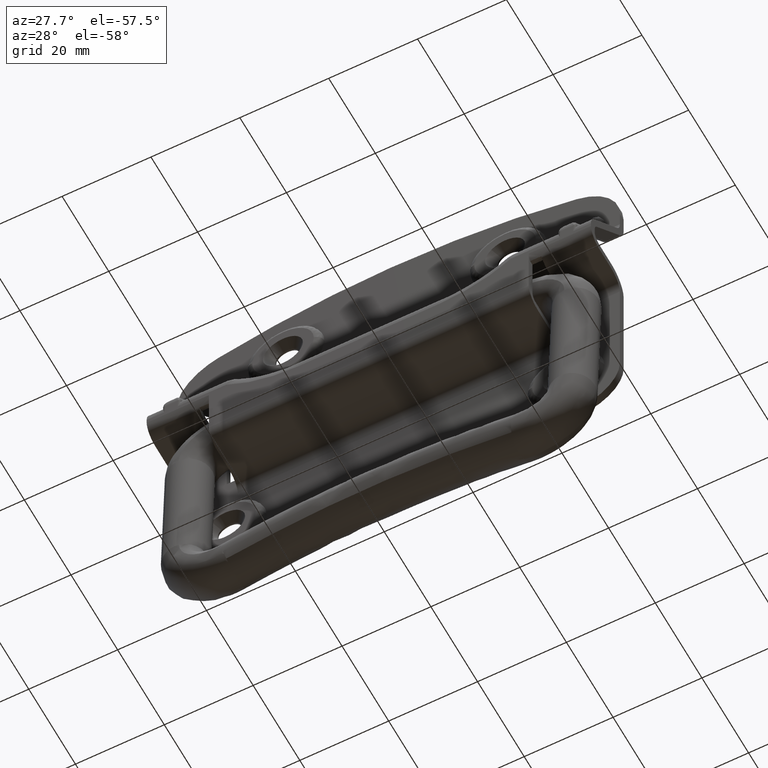
[diagram: clean part render]
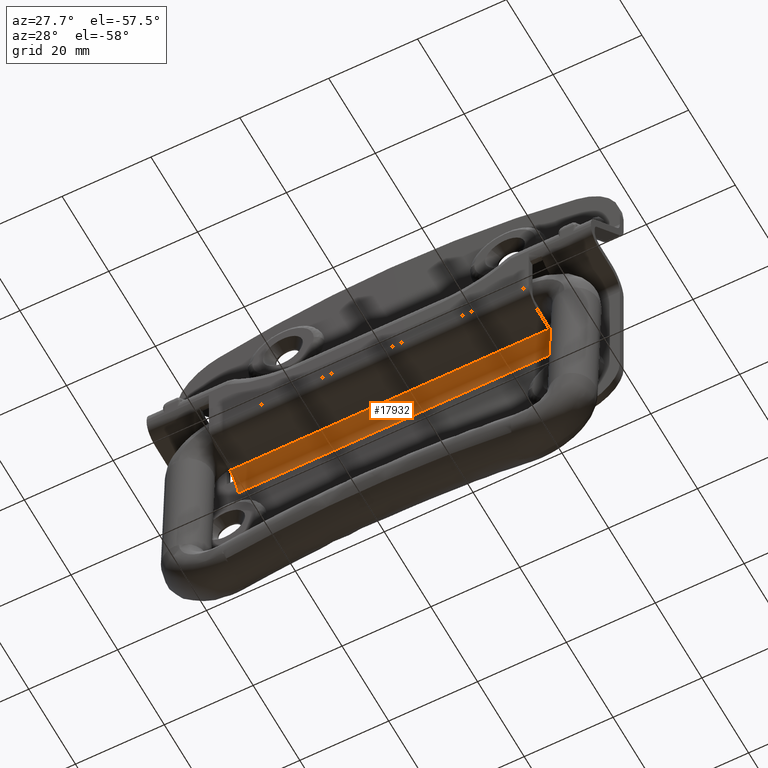
[diagram: same view with one face highlighted and labeled with its STEP entity id]
A machine part, auxiliary view. The second image highlights one B-rep face of the part: STEP entity #17932.
In plain terms, the highlighted face is a freeform B-spline surface patch.
Its self-contained STEP definition (entity closure, byte-faithful):
#17857=CARTESIAN_POINT('',(35.999899999999997,2.300000000000000,-7.0));
#17858=VERTEX_POINT('',#17857);
#17865=CARTESIAN_POINT('',(-35.999899999999997,2.300000000000000,-7.0));
#17866=VERTEX_POINT('',#17865);
#17872=CARTESIAN_POINT('',(35.999899999999997,2.300000000000000,-7.0));
#17873=CARTESIAN_POINT('',(-35.999899999999997,2.300000000000000,-7.0));
#17874=QUASI_UNIFORM_CURVE('',1,(#17872,#17873),.UNSPECIFIED.,.F.,.U.);
#17875=EDGE_CURVE('',#17858,#17866,#17874,.T.);
#17880=CARTESIAN_POINT('',(37.799895000000006,5.798800637414448,-10.591619319077560));
#17881=CARTESIAN_POINT('',(-37.844894875000023,5.798800637414448,-10.591619319077560));
#17882=CARTESIAN_POINT('',(37.799895000000014,5.898785579185964,-6.773348439920588));
#17883=CARTESIAN_POINT('',(-37.844894875000016,5.898785579185964,-6.773348439920588));
#17884=CARTESIAN_POINT('',(37.799895000000006,2.086330111628002,-7.006528205523468));
#17885=CARTESIAN_POINT('',(-37.844894875000023,2.086330111628002,-7.006528205523468));
#17893=(BOUNDED_SURFACE()B_SPLINE_SURFACE(1,2,((#17880,#17882,#17884),(#17881,#17883,#17885)),.UNSPECIFIED.,.F.,.F.,.U.)B_SPLINE_SURFACE_WITH_KNOTS((2,2),(3,3),(0.0,75.644789875000015),(0.0,6.160147432485667),.UNSPECIFIED.)GEOMETRIC_REPRESENTATION_ITEM()RATIONAL_B_SPLINE_SURFACE(((1.0,0.675590207615660,1.0),(1.0,0.675590207615660,1.0)))REPRESENTATION_ITEM('')SURFACE());
#17894=CARTESIAN_POINT('',(35.999899999999997,5.800000000000000,-10.500000000000000));
#17895=VERTEX_POINT('',#17894);
#17896=CARTESIAN_POINT('',(35.999899999999997,2.300000000000000,-7.0));
#17897=CARTESIAN_POINT('',(35.999899999999947,2.586344248506512,-6.999929216988080));
#17898=CARTESIAN_POINT('',(35.999900000000068,3.073090640006828,-7.060085821991584));
#17899=CARTESIAN_POINT('',(35.999899999999947,3.766104914797114,-7.298502361799232));
#17900=CARTESIAN_POINT('',(35.999900000000082,4.415182005507578,-7.671385304719554));
#17901=CARTESIAN_POINT('',(35.999899999999947,4.930460666848139,-8.156002661521015));
#17902=CARTESIAN_POINT('',(35.999900000000089,5.322127997424896,-8.705068212315714));
#17903=CARTESIAN_POINT('',(35.999899999999762,5.679855509501188,-9.426436099494813));
#17904=CARTESIAN_POINT('',(35.999900000000167,5.800395652271177,-10.070418548030400));
#17905=CARTESIAN_POINT('',(35.999899999999997,5.800000000000000,-10.500000000000000));
#17906=B_SPLINE_CURVE_WITH_KNOTS('',3,(#17896,#17897,#17898,#17899,#17900,#17901,#17902,#17903,#17904,#17905),.UNSPECIFIED.,.F.,.U.,(4,1,1,1,1,1,1,4),(0.000000139590252,0.859018364370216,1.460361270990286,2.190547845085776,3.092495034919250,3.564983276028763,4.209270489682616,5.497821640076047),.UNSPECIFIED.);
#17907=EDGE_CURVE('',#17858,#17895,#17906,.T.);
#17908=ORIENTED_EDGE('',*,*,#17907,.F.);
#17909=ORIENTED_EDGE('',*,*,#17875,.T.);
#17910=CARTESIAN_POINT('',(-35.999899999999997,5.800000000000000,-10.500000000000000));
#17911=VERTEX_POINT('',#17910);
#17912=CARTESIAN_POINT('',(-35.999899999999997,2.300000000000000,-7.0));
#17913=CARTESIAN_POINT('',(-35.999899999999947,2.586344248506512,-6.999929216988080));
#17914=CARTESIAN_POINT('',(-35.999900000000068,3.073090640006828,-7.060085821991584));
#17915=CARTESIAN_POINT('',(-35.999899999999947,3.766104914797114,-7.298502361799232));
#17916=CARTESIAN_POINT('',(-35.999900000000082,4.415182005507578,-7.671385304719554));
#17917=CARTESIAN_POINT('',(-35.999899999999947,4.930460666848139,-8.156002661521015));
#17918=CARTESIAN_POINT('',(-35.999900000000089,5.322127997424896,-8.705068212315714));
#17919=CARTESIAN_POINT('',(-35.999899999999762,5.679855509501188,-9.426436099494813));
#17920=CARTESIAN_POINT('',(-35.999900000000167,5.800395652271177,-10.070418548030400));
#17921=CARTESIAN_POINT('',(-35.999899999999997,5.800000000000000,-10.500000000000000));
#17922=B_SPLINE_CURVE_WITH_KNOTS('',3,(#17912,#17913,#17914,#17915,#17916,#17917,#17918,#17919,#17920,#17921),.UNSPECIFIED.,.F.,.U.,(4,1,1,1,1,1,1,4),(0.000000139590252,0.859018364370216,1.460361270990286,2.190547845085776,3.092495034919250,3.564983276028763,4.209270489682616,5.497821640076047),.UNSPECIFIED.);
#17923=EDGE_CURVE('',#17866,#17911,#17922,.T.);
#17924=ORIENTED_EDGE('',*,*,#17923,.T.);
#17925=CARTESIAN_POINT('',(35.999899999999997,5.800000000000000,-10.500000000000000));
#17926=CARTESIAN_POINT('',(-35.999899999999997,5.800000000000000,-10.500000000000000));
#17927=QUASI_UNIFORM_CURVE('',1,(#17925,#17926),.UNSPECIFIED.,.F.,.U.);
#17928=EDGE_CURVE('',#17895,#17911,#17927,.T.);
#17929=ORIENTED_EDGE('',*,*,#17928,.F.);
#17930=EDGE_LOOP('',(#17908,#17909,#17924,#17929));
#17931=FACE_OUTER_BOUND('',#17930,.T.);
#17932=ADVANCED_FACE('',(#17931),#17893,.F.);